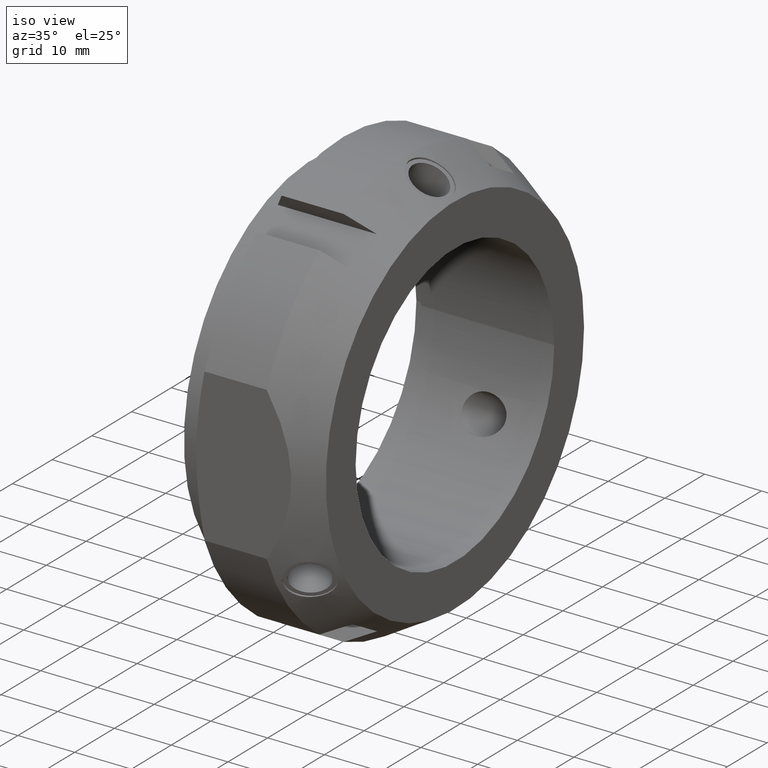
[diagram: clean part render]
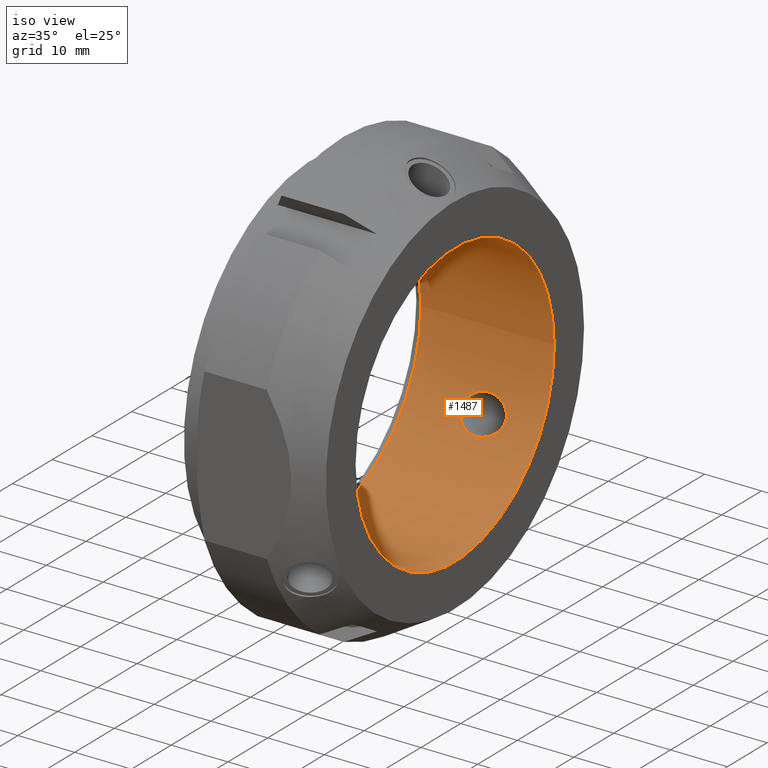
[diagram: same view with one face highlighted and labeled with its STEP entity id]
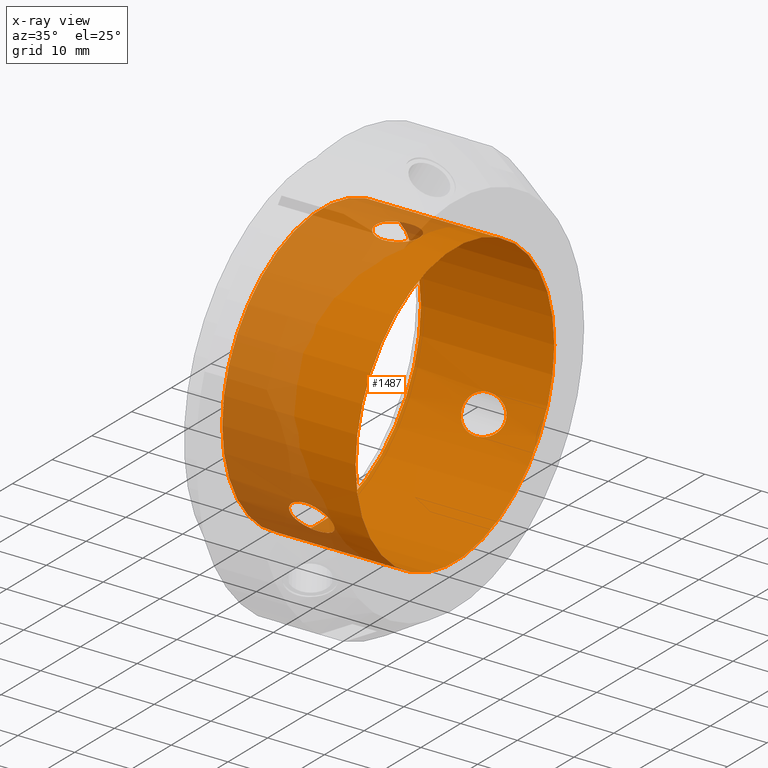
[diagram: x-ray of the same camera — body ghosted, the highlighted face saturated]
A machine part, iso view. The second image highlights one B-rep face of the part: STEP entity #1487.
The next image is the same camera in x-ray: the body ghosted, the highlighted face saturated — about 32% of this face is hidden behind the body in this view.
In plain terms, the highlighted cylindrical surface (bore or boss wall) has radius 25 mm, axis along (1, 0, 0).
Its self-contained STEP definition (entity closure, byte-faithful):
#1090=CARTESIAN_POINT('',(14.805643964883245,23.120215947324844,-9.510815661606848));
#1091=VERTEX_POINT('',#1090);
#1092=CARTESIAN_POINT('',(14.805643964883245,23.120215947324844,-9.510815661606848));
#1093=CARTESIAN_POINT('',(15.304894691039312,23.120215947324844,-9.510815661606848));
#1094=CARTESIAN_POINT('',(15.840720372908335,23.086643281163184,-9.593765804025324));
#1095=CARTESIAN_POINT('',(16.841654194211419,22.943829753242497,-9.930464071410269));
#1096=CARTESIAN_POINT('',(17.306852910766175,22.834199065591694,-10.183777322040781));
#1097=CARTESIAN_POINT('',(17.99163546689762,22.579013857079442,-10.736143592401625));
#1098=CARTESIAN_POINT('',(18.27809071205164,22.426733233449983,-11.054272133135514));
#1099=CARTESIAN_POINT('',(18.66853138670723,22.067179250196691,-11.75563255534559));
#1100=CARTESIAN_POINT('',(18.771403969044105,21.859036787627243,-12.139037679312437));
#1101=CARTESIAN_POINT('',(18.771403969044105,21.442233401594674,-12.860962320687594));
#1102=CARTESIAN_POINT('',(18.668531386707226,21.214266055582986,-13.232921542862407));
#1103=CARTESIAN_POINT('',(18.278090712051632,20.786647104366725,-13.894984637496679));
#1104=CARTESIAN_POINT('',(17.991635466897616,20.587280018237031,-14.185927796430867));
#1105=CARTESIAN_POINT('',(17.306852910766167,20.236509400167009,-14.683107804852931));
#1106=CARTESIAN_POINT('',(16.841654194211412,20.071949033831164,-14.90470739070814));
#1107=CARTESIAN_POINT('',(15.840720372908329,19.851766544825942,-15.196736667584005));
#1108=CARTESIAN_POINT('',(15.30489469103931,19.796715947324838,-15.267286520562012));
#1109=CARTESIAN_POINT('',(14.332065981515935,19.796715947324838,-15.267286520562012));
#1110=CARTESIAN_POINT('',(13.82235574579761,19.846702000878981,-15.203268751214598));
#1111=CARTESIAN_POINT('',(12.878147793072204,20.058735107850161,-14.922402845635549));
#1112=CARTESIAN_POINT('',(12.443835895402106,20.220651997662422,-14.704832273042525));
#1113=CARTESIAN_POINT('',(11.802001932250249,20.574266450844895,-14.204964509020947));
#1114=CARTESIAN_POINT('',(11.537350820708475,20.779702896518124,-13.905560058038823));
#1115=CARTESIAN_POINT('',(11.184435699478739,21.214793338890754,-13.232278579815699));
#1116=CARTESIAN_POINT('',(11.096109490437216,21.443897931693026,-12.85807926998652));
#1117=CARTESIAN_POINT('',(11.096109490437216,21.857372257528894,-12.141920730013506));
#1118=CARTESIAN_POINT('',(11.184435699478739,22.066886069518429,-11.756410677608462));
#1119=CARTESIAN_POINT('',(11.537350820708475,22.43241971237088,-11.042970562458391));
#1120=CARTESIAN_POINT('',(11.802001932250249,22.588993350090917,-10.715355156151126));
#1121=CARTESIAN_POINT('',(12.443835895402104,22.845084305675289,-10.159182174538975));
#1122=CARTESIAN_POINT('',(12.878147793072202,22.952547503750651,-9.910172748363282));
#1123=CARTESIAN_POINT('',(13.822355745797609,23.089767959553438,-9.586113738493371));
#1124=CARTESIAN_POINT('',(14.332065981515941,23.120215947324837,-9.510815661606848));
#1125=CARTESIAN_POINT('',(14.805643964883251,23.120215947324837,-9.510815661606848));
#1126=B_SPLINE_CURVE_WITH_KNOTS('',3,(#1092,#1093,#1094,#1095,#1096,#1097,#1098,#1099,#1100,#1101,#1102,#1103,#1104,#1105,#1106,#1107,#1108,#1109,#1110,#1111,#1112,#1113,#1114,#1115,#1116,#1117,#1118,#1119,#1120,#1121,#1122,#1123,#1124,#1125),.UNSPECIFIED.,.T.,.U.,(4,2,2,2,2,2,2,2,2,2,2,2,2,2,2,2,4),(0.0,0.14977521784682,0.299550435693639,0.424591451503411,0.549632467313182,0.674673483122953,0.799714498932724,0.949489716779544,1.099264934626364,1.241338329636556,1.383411724646749,1.507454022397509,1.63149632014827,1.75553861789903,1.879580915649791,2.021654310659983,2.163727705670176),.UNSPECIFIED.);
#1127=EDGE_CURVE('',#1091,#1091,#1126,.T.);
#1180=CARTESIAN_POINT('',(14.805643964883245,-19.796715947324849,-15.267286520561996));
#1181=VERTEX_POINT('',#1180);
#1182=CARTESIAN_POINT('',(14.805643964883245,-19.796715947324849,-15.267286520561996));
#1183=CARTESIAN_POINT('',(15.30489469103931,-19.796715947324849,-15.267286520561996));
#1184=CARTESIAN_POINT('',(15.840720372908329,-19.851766544825956,-15.196736667583988));
#1185=CARTESIAN_POINT('',(16.841654194211412,-20.071949033831178,-14.904707390708122));
#1186=CARTESIAN_POINT('',(17.306852910766167,-20.236509400167016,-14.683107804852915));
#1187=CARTESIAN_POINT('',(17.991635466897616,-20.587280018237053,-14.185927796430853));
#1188=CARTESIAN_POINT('',(18.278090712051636,-20.786647104366732,-13.894984637496661));
#1189=CARTESIAN_POINT('',(18.66853138670723,-21.214266055582996,-13.232921542862391));
#1190=CARTESIAN_POINT('',(18.771403969044105,-21.442233401594688,-12.860962320687575));
#1191=CARTESIAN_POINT('',(18.771403969044105,-21.859036787627257,-12.139037679312416));
#1192=CARTESIAN_POINT('',(18.668531386707222,-22.067179250196702,-11.755632555345567));
#1193=CARTESIAN_POINT('',(18.278090712051629,-22.426733233449987,-11.054272133135495));
#1194=CARTESIAN_POINT('',(17.991635466897613,-22.579013857079442,-10.736143592401604));
#1195=CARTESIAN_POINT('',(17.306852910766164,-22.834199065591694,-10.183777322040761));
#1196=CARTESIAN_POINT('',(16.841654194211412,-22.943829753242504,-9.930464071410249));
#1197=CARTESIAN_POINT('',(15.840720372908329,-23.086643281163191,-9.593765804025306));
#1198=CARTESIAN_POINT('',(15.30489469103931,-23.120215947324851,-9.510815661606832));
#1199=CARTESIAN_POINT('',(14.332065981515939,-23.120215947324851,-9.510815661606832));
#1200=CARTESIAN_POINT('',(13.822355745797612,-23.089767959553448,-9.586113738493355));
#1201=CARTESIAN_POINT('',(12.878147793072204,-22.952547503750658,-9.910172748363264));
#1202=CARTESIAN_POINT('',(12.443835895402106,-22.8450843056753,-10.159182174538959));
#1203=CARTESIAN_POINT('',(11.802001932250249,-22.588993350090931,-10.715355156151109));
#1204=CARTESIAN_POINT('',(11.537350820708479,-22.432419712370898,-11.04297056245837));
#1205=CARTESIAN_POINT('',(11.184435699478739,-22.066886069518446,-11.756410677608439));
#1206=CARTESIAN_POINT('',(11.096109490437216,-21.857372257528908,-12.141920730013489));
#1207=CARTESIAN_POINT('',(11.096109490437216,-21.443897931693037,-12.858079269986503));
#1208=CARTESIAN_POINT('',(11.184435699478737,-21.214793338890765,-13.232278579815686));
#1209=CARTESIAN_POINT('',(11.537350820708475,-20.779702896518131,-13.905560058038811));
#1210=CARTESIAN_POINT('',(11.802001932250247,-20.574266450844899,-14.204964509020925));
#1211=CARTESIAN_POINT('',(12.443835895402104,-20.220651997662429,-14.704832273042506));
#1212=CARTESIAN_POINT('',(12.878147793072202,-20.058735107850168,-14.922402845635537));
#1213=CARTESIAN_POINT('',(13.822355745797612,-19.846702000878992,-15.203268751214585));
#1214=CARTESIAN_POINT('',(14.332065981515939,-19.796715947324849,-15.267286520561996));
#1215=CARTESIAN_POINT('',(14.805643964883245,-19.796715947324849,-15.267286520561996));
#1216=B_SPLINE_CURVE_WITH_KNOTS('',3,(#1182,#1183,#1184,#1185,#1186,#1187,#1188,#1189,#1190,#1191,#1192,#1193,#1194,#1195,#1196,#1197,#1198,#1199,#1200,#1201,#1202,#1203,#1204,#1205,#1206,#1207,#1208,#1209,#1210,#1211,#1212,#1213,#1214,#1215),.UNSPECIFIED.,.T.,.U.,(4,2,2,2,2,2,2,2,2,2,2,2,2,2,2,2,4),(0.0,0.14977521784682,0.299550435693639,0.42459145150341,0.549632467313182,0.674673483122953,0.799714498932725,0.949489716779544,1.099264934626363,1.241338329636556,1.383411724646749,1.507454022397509,1.631496320148269,1.75553861789903,1.87958091564979,2.021654310659983,2.163727705670175),.UNSPECIFIED.);
#1217=EDGE_CURVE('',#1181,#1181,#1216,.T.);
#1270=CARTESIAN_POINT('',(14.805643964883245,-3.3235,24.778102182168837));
#1271=VERTEX_POINT('',#1270);
#1272=CARTESIAN_POINT('',(14.805643964883245,-3.3235,24.778102182168837));
#1273=CARTESIAN_POINT('',(15.30489469103931,-3.3235,24.778102182168837));
#1274=CARTESIAN_POINT('',(15.840720372908329,-3.234876736337236,24.790502471609305));
#1275=CARTESIAN_POINT('',(16.841654194211412,-2.871880719411326,24.835171462118378));
#1276=CARTESIAN_POINT('',(17.306852910766167,-2.597689665424685,24.866885126893685));
#1277=CARTESIAN_POINT('',(17.991635466897616,-1.991733838842404,24.922071388832467));
#1278=CARTESIAN_POINT('',(18.278090712051632,-1.640086129083254,24.949256770632164));
#1279=CARTESIAN_POINT('',(18.66853138670723,-0.852913194613704,24.988554098207967));
#1280=CARTESIAN_POINT('',(18.771403969044105,-0.416803386032571,25.0));
#1281=CARTESIAN_POINT('',(18.771403969044105,0.416803386032571,25.0));
#1282=CARTESIAN_POINT('',(18.668531386707226,0.852913194613704,24.988554098207967));
#1283=CARTESIAN_POINT('',(18.278090712051632,1.640086129083253,24.949256770632164));
#1284=CARTESIAN_POINT('',(17.991635466897616,1.991733838842403,24.922071388832467));
#1285=CARTESIAN_POINT('',(17.306852910766167,2.597689665424684,24.866885126893685));
#1286=CARTESIAN_POINT('',(16.841654194211412,2.871880719411326,24.835171462118378));
#1287=CARTESIAN_POINT('',(15.840720372908329,3.234876736337236,24.790502471609305));
#1288=CARTESIAN_POINT('',(15.30489469103931,3.3235,24.778102182168837));
#1289=CARTESIAN_POINT('',(14.344676228961802,3.3235,24.778102182168837));
#1290=CARTESIAN_POINT('',(13.847951361394017,3.247287448176204,24.788768783006489));
#1291=CARTESIAN_POINT('',(12.923843426496678,2.915570250379409,24.829969461605845));
#1292=CARTESIAN_POINT('',(12.496645575067916,2.659497656817957,24.86008189187201));
#1293=CARTESIAN_POINT('',(11.841531154354712,2.064040114330854,24.916305515399895));
#1294=CARTESIAN_POINT('',(11.562516103231692,1.696031452018203,24.945773199388181));
#1295=CARTESIAN_POINT('',(11.189854737733322,0.877061723783869,24.987974822452124));
#1296=CARTESIAN_POINT('',(11.096109490437211,0.426109309759358,25.0));
#1297=CARTESIAN_POINT('',(11.096109490437211,-0.413474325835868,25.0));
#1298=CARTESIAN_POINT('',(11.184435699478744,-0.852092730627676,24.988689257424134));
#1299=CARTESIAN_POINT('',(11.537350820708481,-1.652716815852756,24.948530620497191));
#1300=CARTESIAN_POINT('',(11.802001932250249,-2.014726899246023,24.920319665172048));
#1301=CARTESIAN_POINT('',(12.443835895402104,-2.62443230801287,24.864014447581475));
#1302=CARTESIAN_POINT('',(12.878147793072204,-2.893812395900488,24.832575593998808));
#1303=CARTESIAN_POINT('',(13.82235574579761,-3.243065958674456,24.78938248970795));
#1304=CARTESIAN_POINT('',(14.332065981515941,-3.3235,24.778102182168837));
#1305=CARTESIAN_POINT('',(14.805643964883249,-3.3235,24.778102182168837));
#1306=B_SPLINE_CURVE_WITH_KNOTS('',3,(#1272,#1273,#1274,#1275,#1276,#1277,#1278,#1279,#1280,#1281,#1282,#1283,#1284,#1285,#1286,#1287,#1288,#1289,#1290,#1291,#1292,#1293,#1294,#1295,#1296,#1297,#1298,#1299,#1300,#1301,#1302,#1303,#1304,#1305),.UNSPECIFIED.,.T.,.U.,(4,2,2,2,2,2,2,2,2,2,2,2,2,2,2,2,4),(0.0,0.14977521784682,0.299550435693639,0.42459145150341,0.549632467313182,0.674673483122953,0.799714498932724,0.949489716779544,1.099264934626363,1.237555255402797,1.375845576179231,1.503678369107038,1.631511162034846,1.755553459785606,1.879595757536366,2.021669152546559,2.163742547556752),.UNSPECIFIED.);
#1307=EDGE_CURVE('',#1271,#1271,#1306,.T.);
#1371=CARTESIAN_POINT('',(1.499999999999993,25.0,0.0));
#1372=VERTEX_POINT('',#1371);
#1373=CARTESIAN_POINT('',(1.499999999999993,0.0,0.0));
#1374=DIRECTION('',(1.0,0.0,0.0));
#1375=DIRECTION('',(0.0,1.0,0.0));
#1376=AXIS2_PLACEMENT_3D('',#1373,#1374,#1375);
#1377=CIRCLE('',#1376,25.0);
#1378=EDGE_CURVE('',#1372,#1372,#1377,.T.);
#1455=CARTESIAN_POINT('',(24.999999999999993,25.0,0.0));
#1456=VERTEX_POINT('',#1455);
#1457=CARTESIAN_POINT('',(24.999999999999993,0.0,0.0));
#1458=DIRECTION('',(1.0,0.0,0.0));
#1459=DIRECTION('',(0.0,1.0,0.0));
#1460=AXIS2_PLACEMENT_3D('',#1457,#1458,#1459);
#1461=CIRCLE('',#1460,25.0);
#1462=EDGE_CURVE('',#1456,#1456,#1461,.T.);
#1467=CARTESIAN_POINT('',(13.249999999999993,0.0,0.0));
#1468=DIRECTION('',(1.0,0.0,0.0));
#1469=DIRECTION('',(0.0,1.0,0.0));
#1470=AXIS2_PLACEMENT_3D('',#1467,#1468,#1469);
#1471=CYLINDRICAL_SURFACE('',#1470,25.0);
#1472=ORIENTED_EDGE('',*,*,#1378,.F.);
#1473=EDGE_LOOP('',(#1472));
#1474=FACE_OUTER_BOUND('',#1473,.T.);
#1475=ORIENTED_EDGE('',*,*,#1127,.T.);
#1476=EDGE_LOOP('',(#1475));
#1477=FACE_BOUND('',#1476,.T.);
#1478=ORIENTED_EDGE('',*,*,#1217,.T.);
#1479=EDGE_LOOP('',(#1478));
#1480=FACE_BOUND('',#1479,.T.);
#1481=ORIENTED_EDGE('',*,*,#1307,.T.);
#1482=EDGE_LOOP('',(#1481));
#1483=FACE_BOUND('',#1482,.T.);
#1484=ORIENTED_EDGE('',*,*,#1462,.T.);
#1485=EDGE_LOOP('',(#1484));
#1486=FACE_BOUND('',#1485,.T.);
#1487=ADVANCED_FACE('',(#1474,#1477,#1480,#1483,#1486),#1471,.F.);